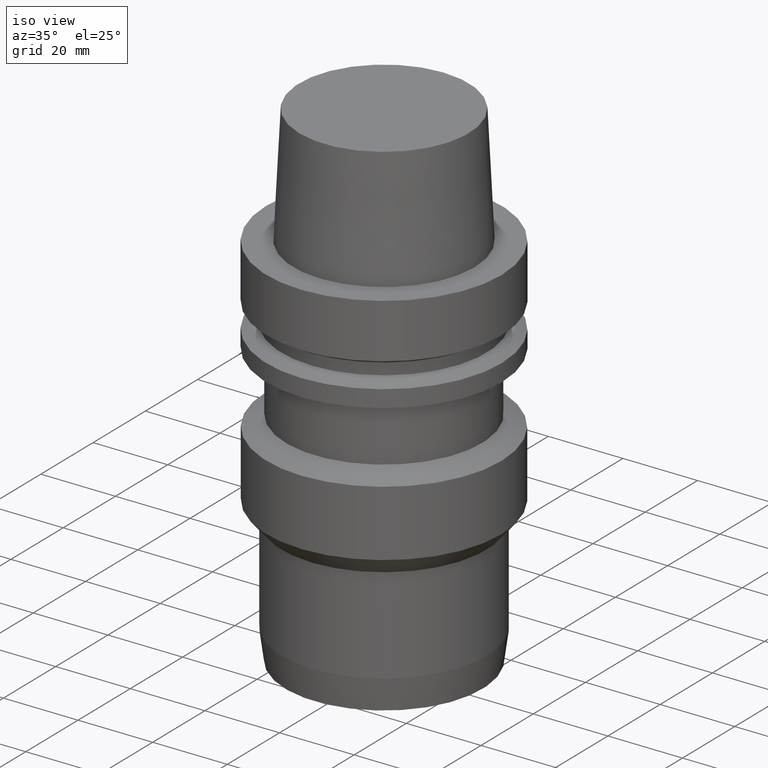
[diagram: clean part render]
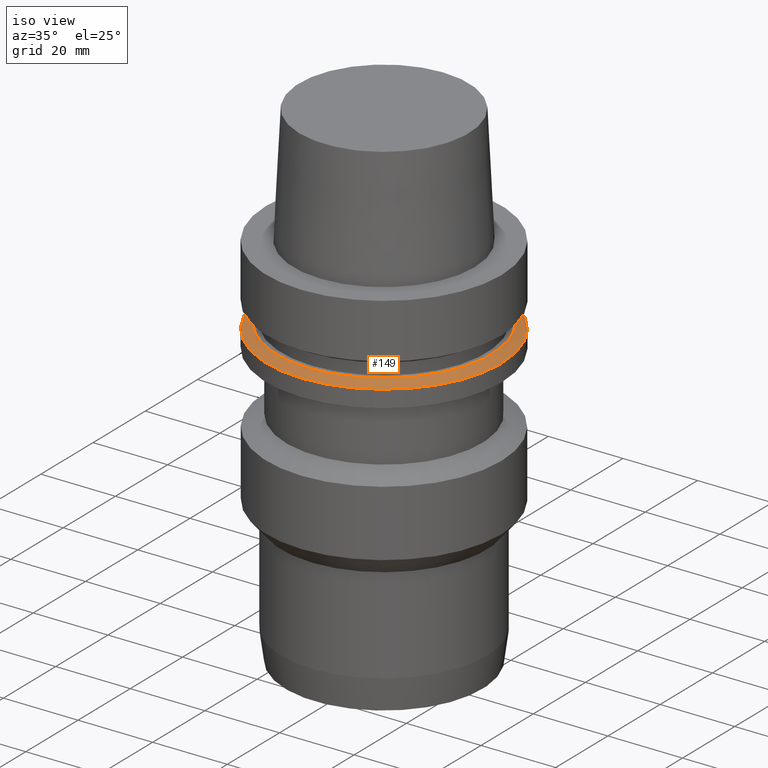
[diagram: same view with one face highlighted and labeled with its STEP entity id]
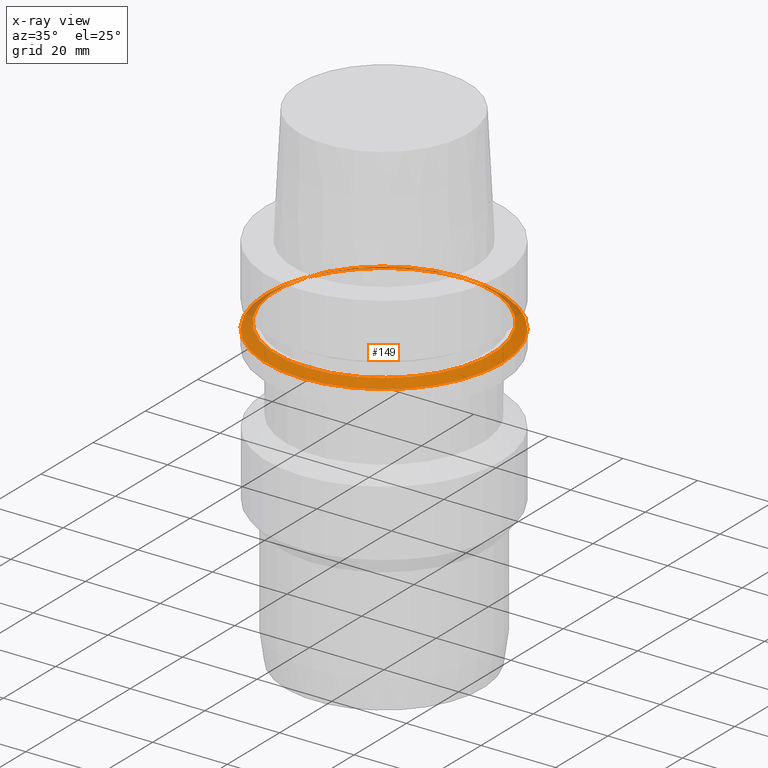
[diagram: x-ray of the same camera — body ghosted, the highlighted face saturated]
A machine part, iso view. The second image highlights one B-rep face of the part: STEP entity #149.
The next image is the same camera in x-ray: the body ghosted, the highlighted face saturated — about 11% of this face is hidden behind the body in this view.
In plain terms, the highlighted conical surface has half-angle 60 deg.
Its self-contained STEP definition (entity closure, byte-faithful):
#77=EDGE_CURVE('Unnamed[1]',#192,#192,#193,.T.);
#103=EDGE_CURVE('Unnamed[1]',#233,#233,#234,.T.);
#149=ADVANCED_FACE('Unnamed[1]',(#305,#306),#307,.T.);
#192=VERTEX_POINT('',#347);
#193=CIRCLE('',#348,28.8975952641919);
#233=VERTEX_POINT('',#398);
#234=CIRCLE('',#399,31.5);
#305=FACE_BOUND('',#488,.T.);
#306=FACE_BOUND('',#489,.T.);
#307=CONICAL_SURFACE('',#490,30.1987976320959,1.04719755119657);
#347=CARTESIAN_POINT('',(1.21699275665268E-015,28.8975952641919,-19.875));
#348=AXIS2_PLACEMENT_3D('',#517,#518,#519);
#398=CARTESIAN_POINT('',(1.30899429078397E-015,31.5,-21.3774990747592));
#399=AXIS2_PLACEMENT_3D('',#564,#565,#566);
#488=EDGE_LOOP('',(#645));
#489=EDGE_LOOP('',(#646));
#490=AXIS2_PLACEMENT_3D('',#647,#648,#649);
#517=CARTESIAN_POINT('',(1.21699275665268E-015,2.43398551330536E-015,-19.875));
#518=DIRECTION('',(-6.12323399573677E-017,-1.22464679914735E-016,1.0));
#519=DIRECTION('',(-1.23259516440783E-032,1.0,1.22464679914735E-016));
#564=CARTESIAN_POINT('',(1.30899429078397E-015,2.61798858156794E-015,-21.3774990747592));
#565=DIRECTION('',(-6.12323399573677E-017,-1.22464679914735E-016,1.0));
#566=DIRECTION('',(-1.23259516440783E-032,1.0,1.22464679914735E-016));
#645=ORIENTED_EDGE('',*,*,#77,.F.);
#646=ORIENTED_EDGE('',*,*,#103,.T.);
#647=CARTESIAN_POINT('',(1.26299352371833E-015,2.52598704743665E-015,-20.6262495373796));
#648=DIRECTION('',(6.12323399573677E-017,1.22464679914735E-016,-1.0));
#649=DIRECTION('',(-1.23259516440783E-032,1.0,1.22464679914735E-016));